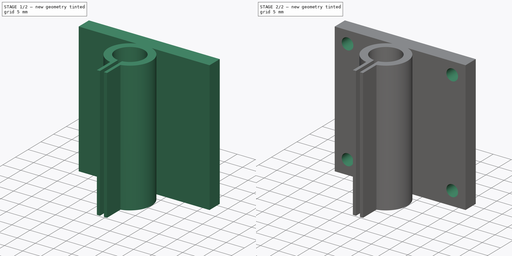
[diagram: build sequence overview — one tinted view per stage of 2, left to right]
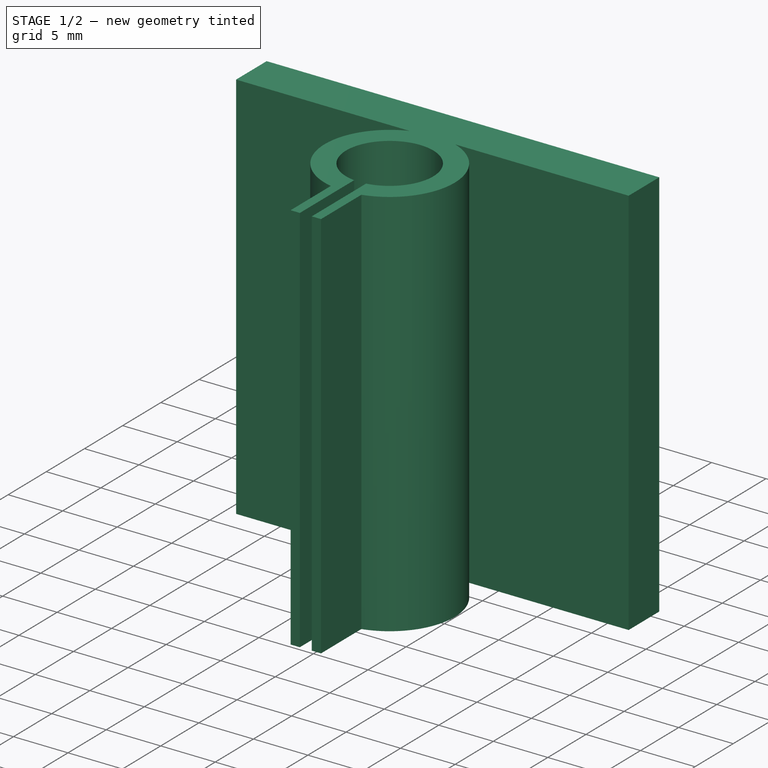
[diagram: stage 1 of 2 — iso view after this stage's code; geometry added in this stage tinted green]
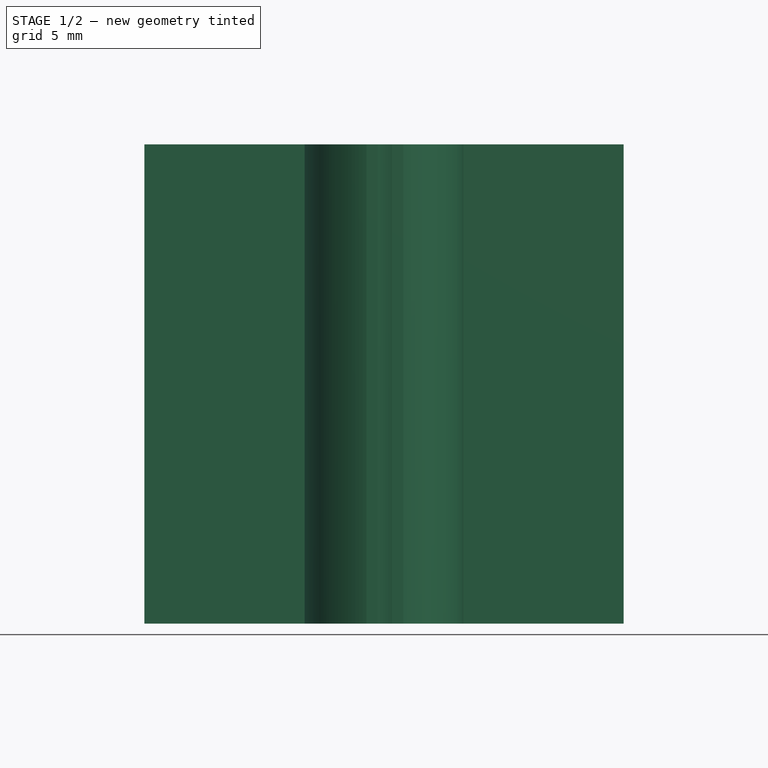
[diagram: stage 1 of 2 — front view after this stage's code; geometry added in this stage tinted green]
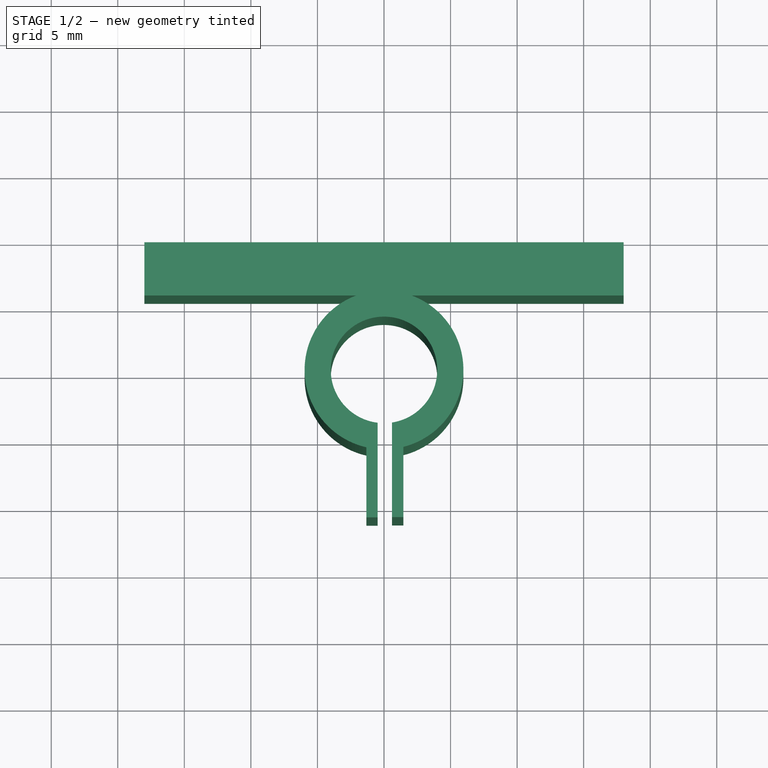
[diagram: stage 1 of 2 — top view after this stage's code; geometry added in this stage tinted green]
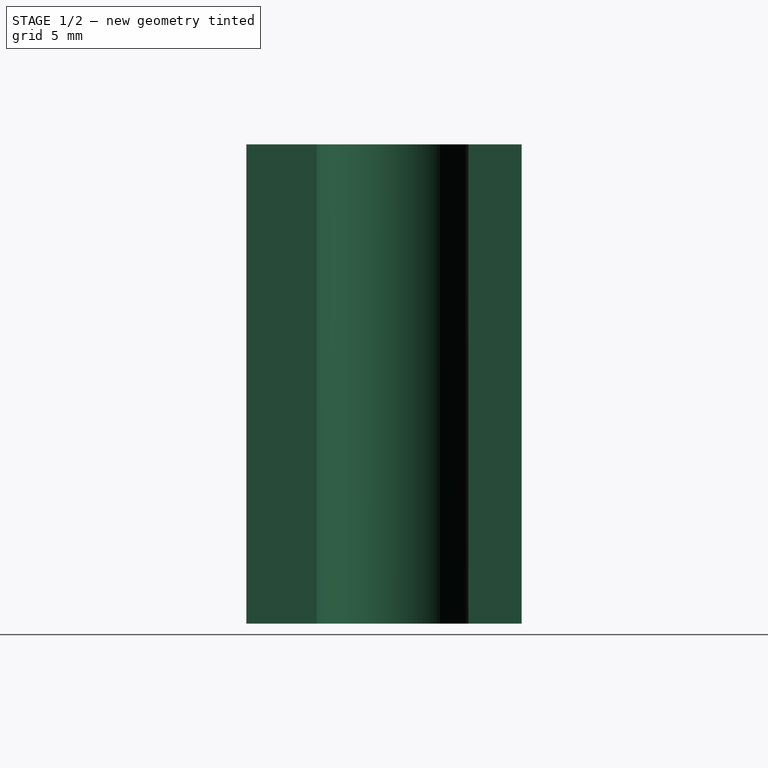
[diagram: stage 1 of 2 — right view after this stage's code; geometry added in this stage tinted green]
FCSTD DOCUMENT  (FreeCAD 0.16R)
Label: camera_mount
License: All rights reserved
LicenseURL: http://en.wikipedia.org/wiki/All_rights_reserved
objects: Sketcher::SketchObject×2, PartDesign::Pad×1, PartDesign::Pocket×1
note: 6 computed .brp shape members not serialized (recipe doc carries the construction recipe); baked Part::Feature solids carry a one-line shape summary decoded from their .brp

FEATURE [Sketcher::SketchObject] Sketch
  sketch-geometry (19):
    g0: ArcOfCircle CenterX=0 CenterY=0 CenterZ=0 NormalX=0 NormalY=0 NormalZ=1 Radius=4 StartAngle=5.29531 EndAngle=10.4068
    g1: LineSegment StartX=-0.478604 StartY=-3.97126 StartZ=0 EndX=-0.478604 EndY=-11.0865 EndZ=0
    g2: LineSegment StartX=-0.478604 StartY=-11.0865 StartZ=0 EndX=-1.32632 EndY=-11.0865 EndZ=0
    g3: LineSegment StartX=0.603336 StartY=-3.95424 StartZ=0 EndX=0.603336 EndY=-11.0694 EndZ=0
    g4: LineSegment StartX=0.603336 StartY=-11.0694 StartZ=0 EndX=1.45105 EndY=-11.0694 EndZ=0
    g5: ArcOfCircle CenterX=0 CenterY=0 CenterZ=0 NormalX=0 NormalY=0 NormalZ=1 Radius=4 StartAngle=4.12359 EndAngle=4.59245
    g6: ArcOfCircle CenterX=0 CenterY=0 CenterZ=0 NormalX=0 NormalY=0 NormalZ=1 Radius=4 StartAngle=4.8638 EndAngle=5.29531
    g7: LineSegment StartX=-1.32632 StartY=-5.81676 StartZ=0 EndX=-1.32632 EndY=-11.0865 EndZ=0
    g8: LineSegment StartX=1.45105 StartY=-5.78691 StartZ=0 EndX=1.45105 EndY=-11.0694 EndZ=0
    g9: ArcOfCircle CenterX=0 CenterY=0 CenterZ=0 NormalX=0 NormalY=0 NormalZ=1 Radius=5.96606 StartAngle=1.9278 EndAngle=4.4882
    g10: ArcOfCircle CenterX=0 CenterY=0 CenterZ=0 NormalX=0 NormalY=0 NormalZ=1 Radius=5.96606 StartAngle=4.95807 EndAngle=7.49698
    g11: LineSegment StartX=-18 StartY=9.5899 StartZ=0 EndX=18 EndY=9.5899 EndZ=0
    g12: LineSegment StartX=18 StartY=9.5899 StartZ=0 EndX=18 EndY=5.5899 EndZ=0
    g13: LineSegment StartX=-18 StartY=5.5899 StartZ=0 EndX=-18 EndY=9.5899 EndZ=0
    g14: LineSegment StartX=-18 StartY=5.5899 StartZ=0 EndX=-2.08493 EndY=5.5899 EndZ=0
    g15: LineSegment StartX=2.08493 StartY=5.5899 StartZ=0 EndX=18 EndY=5.5899 EndZ=0
    g16: LineSegment [constr] StartX=0 StartY=0 StartZ=0 EndX=0 EndY=10.9551 EndZ=0
    g17: LineSegment [constr] StartX=-2.08493 StartY=5.5899 StartZ=0 EndX=0 EndY=5.5899 EndZ=0
    g18: LineSegment [constr] StartX=2.08493 StartY=5.5899 StartZ=0 EndX=0 EndY=5.5899 EndZ=0
  constraints (48):
    c: Radius(g0) = 4
    c: Coincident(g1,g2)
    c: Horizontal(g2)
    c: Vertical(g1)
    c: Coincident(g3,g4)
    c: Horizontal(g4)
    c: Vertical(g3)
    c: Equal(g1,g3)
    c: Equal(g2,g4)
    c: Coincident(g0,g-1)
    c: Coincident(g5,g-1)
    c: Coincident(g5,g0)
    c: PointOnObject(g5,g1)
    c: Coincident(g5,g1)
    c: Coincident(g6,g-1)
    c: Coincident(g6,g0)
    c: Coincident(g3,g6)
    c: Coincident(g7,g2)
    c: Vertical(g7)
    c: Coincident(g8,g4)
    c: Vertical(g8)
    c: Coincident(g9,g-1)
    c: Coincident(g9,g7)
    c: Coincident(g10,g-1)
    c: Coincident(g10,g8)
    c: Coincident(g11,g12)
    c: Coincident(g13,g11)
    c: Horizontal(g11)
    c: Vertical(g12)
    c: Vertical(g13)
    c: Coincident(g14,g13)
    c: Coincident(g14,g9)
    c: Horizontal(g14)
    c: Coincident(g15,g10)
    c: Horizontal(g15)
    c: Coincident(g15,g12)
    c: Equal(g12,g13)
    c: Equal(g15,g14)
    c: Coincident(g16,g-1)
    c: PointOnObject(g16,g-2)
    c: Coincident(g17,g9)
    c: PointOnObject(g17,g16)
    c: Horizontal(g17)
    c: Coincident(g18,g10)
    c: Coincident(g18,g17)
    c: Equal(g18,g17)
    c: DistanceX(g11,g11) = 36
    c: DistanceY(g13,g13) = 4
FEATURE [PartDesign::Pad] Pad
  Length = 36
  Length2 = 100
  Sketch = -> Sketch
  Type = 0
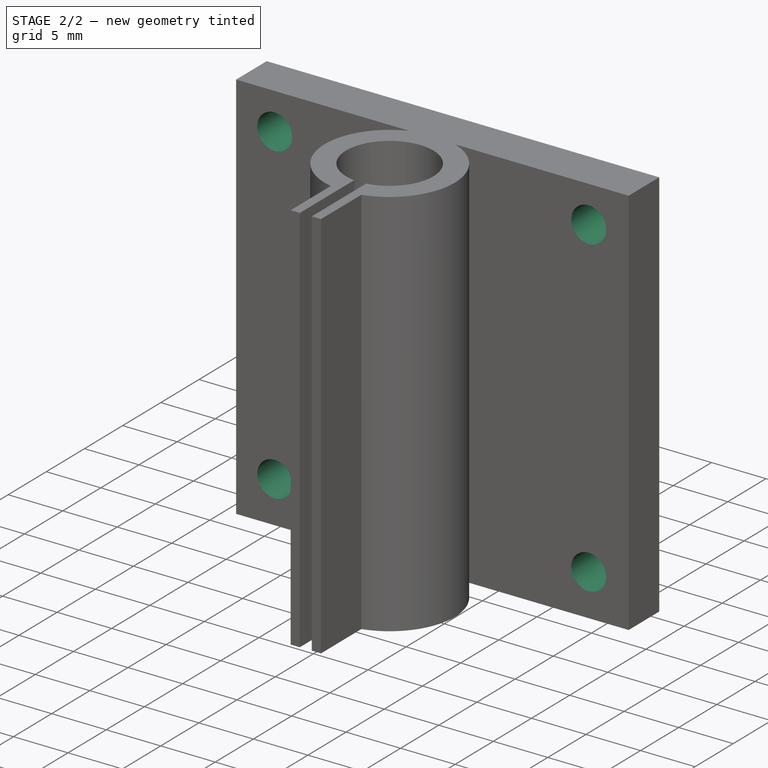
[diagram: stage 2 of 2 — iso view after this stage's code; geometry added in this stage tinted green]
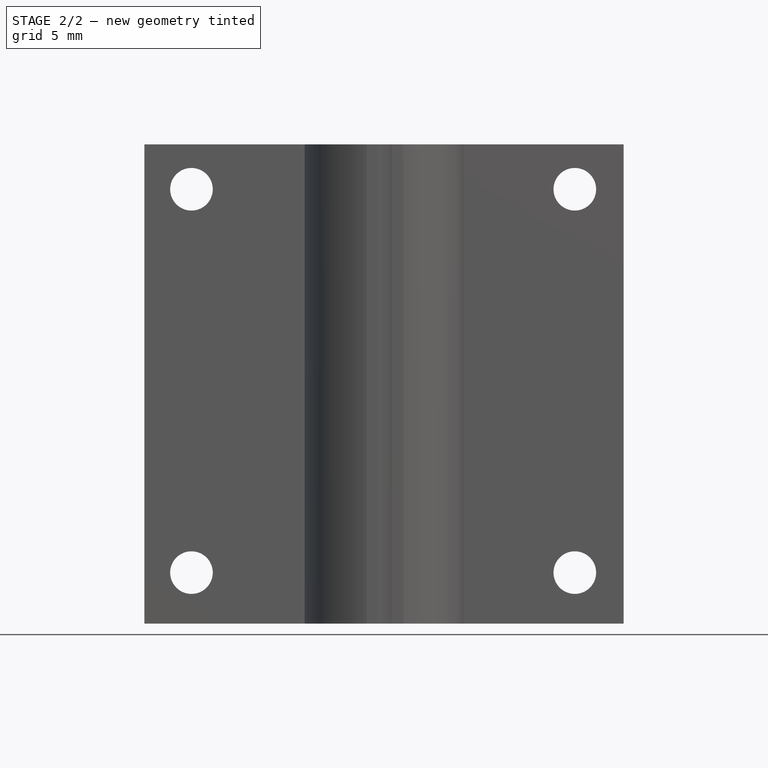
[diagram: stage 2 of 2 — front view after this stage's code; geometry added in this stage tinted green]
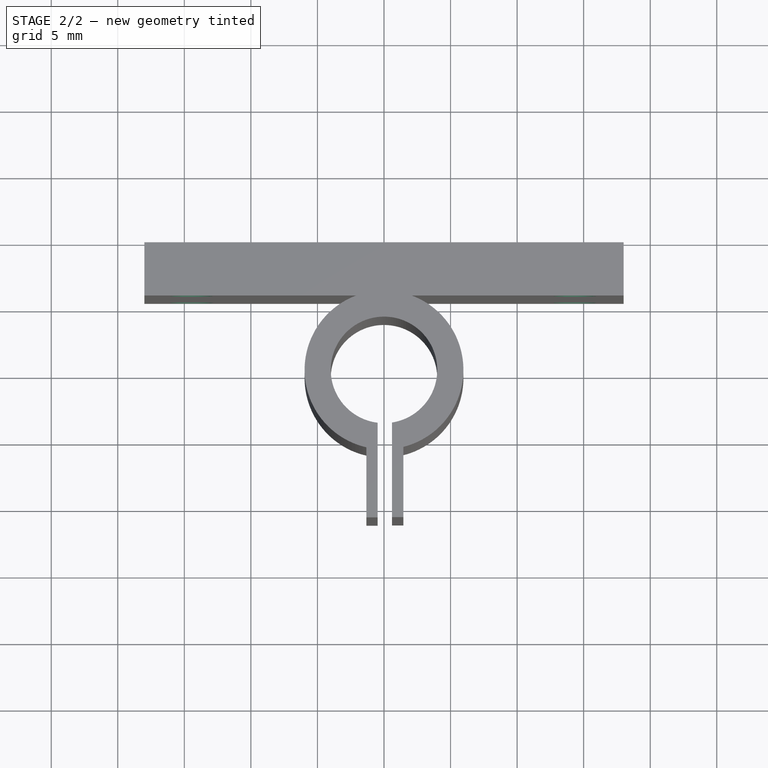
[diagram: stage 2 of 2 — top view after this stage's code; geometry added in this stage tinted green]
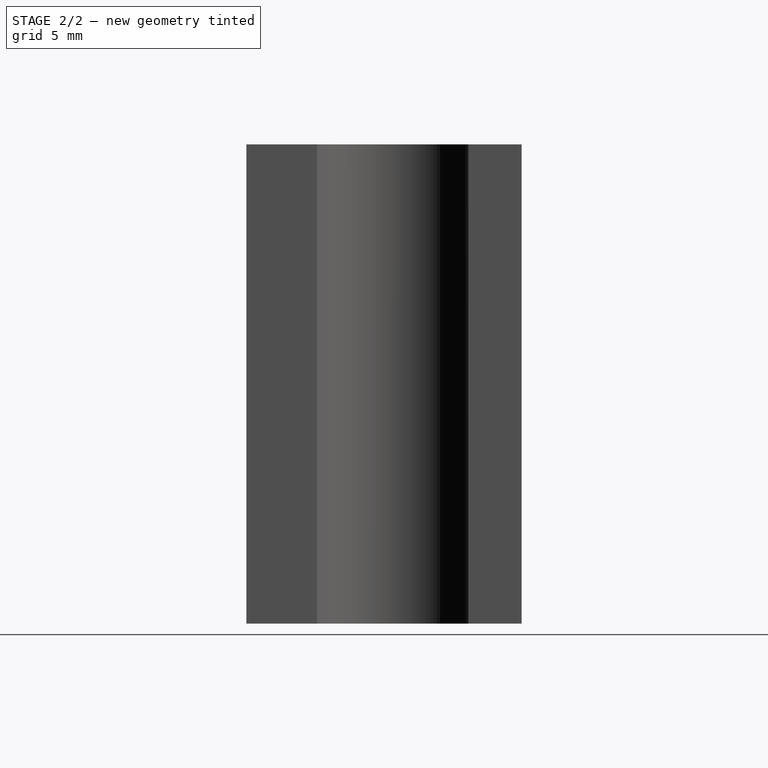
[diagram: stage 2 of 2 — right view after this stage's code; geometry added in this stage tinted green]
FEATURE [Sketcher::SketchObject] Sketch001
  Placement = pos=(0,9.5899,0) rot=(0,0.707107,0.707107;3.14159rad)
  Support = -> Pad [Face10]
  sketch-geometry (8):
    g0: LineSegment [constr] StartX=-14.3354 StartY=32.6301 StartZ=0 EndX=14.4646 EndY=32.6301 EndZ=0
    g1: LineSegment [constr] StartX=14.4646 StartY=32.6301 StartZ=0 EndX=14.4646 EndY=3.83013 EndZ=0
    g2: LineSegment [constr] StartX=14.4646 StartY=3.83013 StartZ=0 EndX=-14.3354 EndY=3.83013 EndZ=0
    g3: LineSegment [constr] StartX=-14.3354 StartY=3.83013 StartZ=0 EndX=-14.3354 EndY=32.6301 EndZ=0
    g4: Circle CenterX=-14.3354 CenterY=32.6301 CenterZ=0 NormalX=0 NormalY=0 NormalZ=1 Radius=1.6
    g5: Circle CenterX=14.4646 CenterY=32.6301 CenterZ=0 NormalX=0 NormalY=0 NormalZ=1 Radius=1.6
    g6: Circle CenterX=14.4646 CenterY=3.83013 CenterZ=0 NormalX=0 NormalY=0 NormalZ=1 Radius=1.6
    g7: Circle CenterX=-14.3354 CenterY=3.83013 CenterZ=0 NormalX=0 NormalY=0 NormalZ=1 Radius=1.6
  constraints (18):
    c: Coincident(g0,g1)
    c: Coincident(g1,g2)
    c: Coincident(g2,g3)
    c: Coincident(g3,g0)
    c: Horizontal(g0)
    c: Horizontal(g2)
    c: Vertical(g1)
    c: Vertical(g3)
    c: Equal(g0,g1)
    c: DistanceX(g0,g0) = 28.8
    c: Coincident(g4,g0)
    c: Coincident(g5,g0)
    c: Coincident(g6,g1)
    c: Coincident(g7,g2)
    c: Radius(g6) = 1.6
    c: Equal(g6,g5)
    c: Equal(g6,g4)
    c: Equal(g6,g7)
FEATURE [PartDesign::Pocket] Pocket
  Length = 10
  Sketch = -> Sketch001
  Type = 0
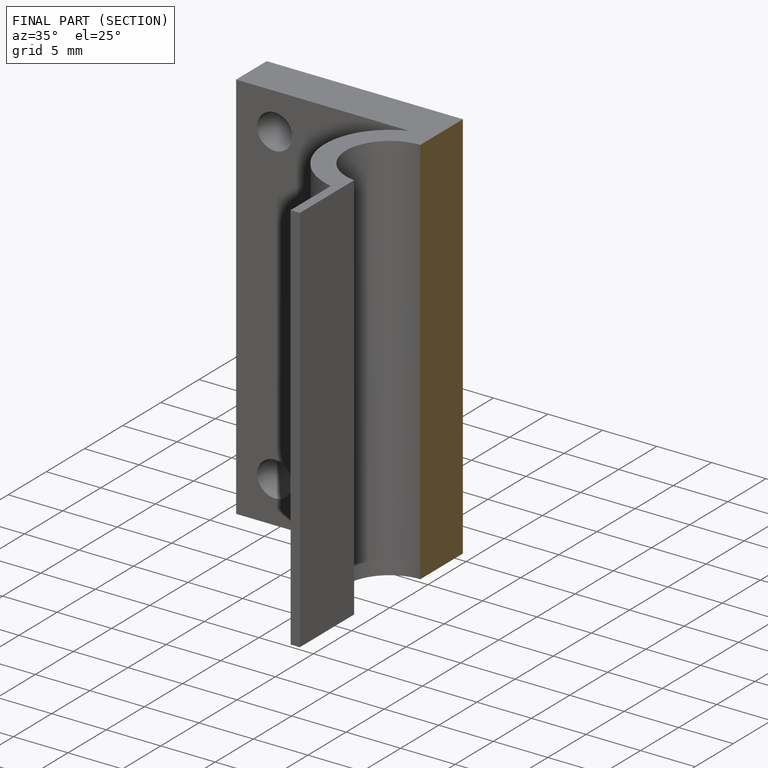
[diagram: finished part — half-section view (interior)]
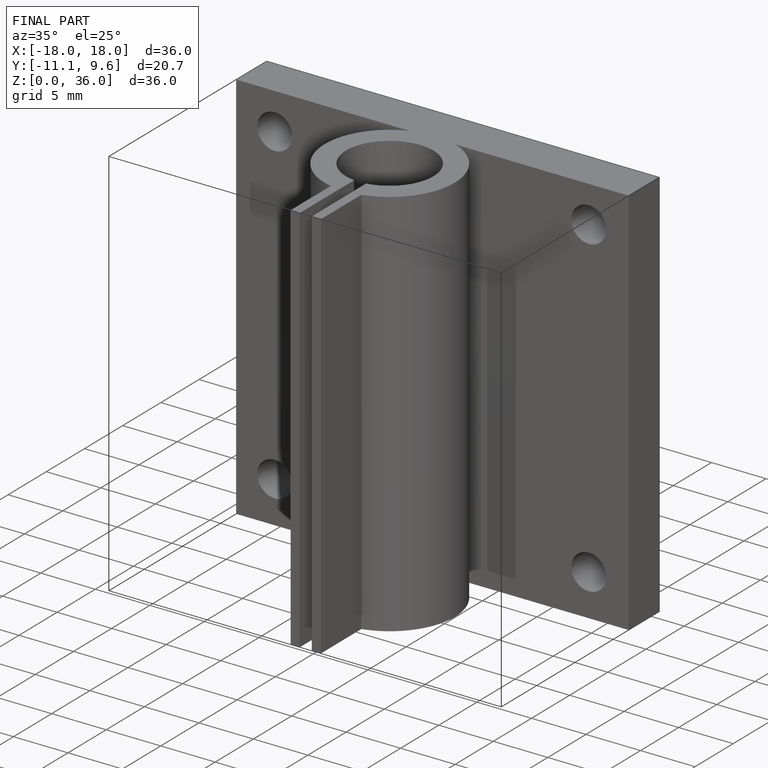
[diagram: finished part — iso view with bounding-box wireframe]
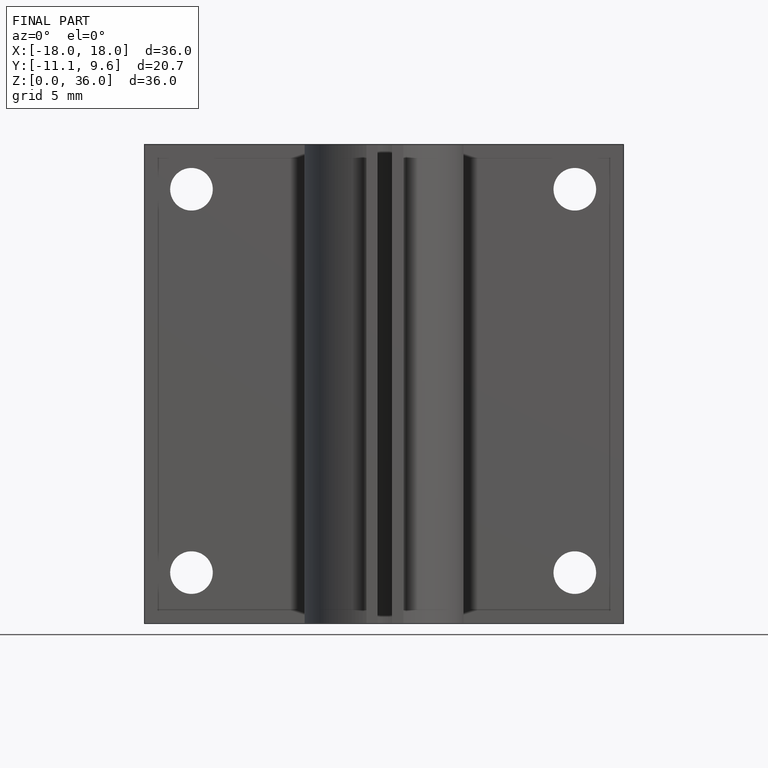
[diagram: finished part — front view with bounding-box wireframe]
